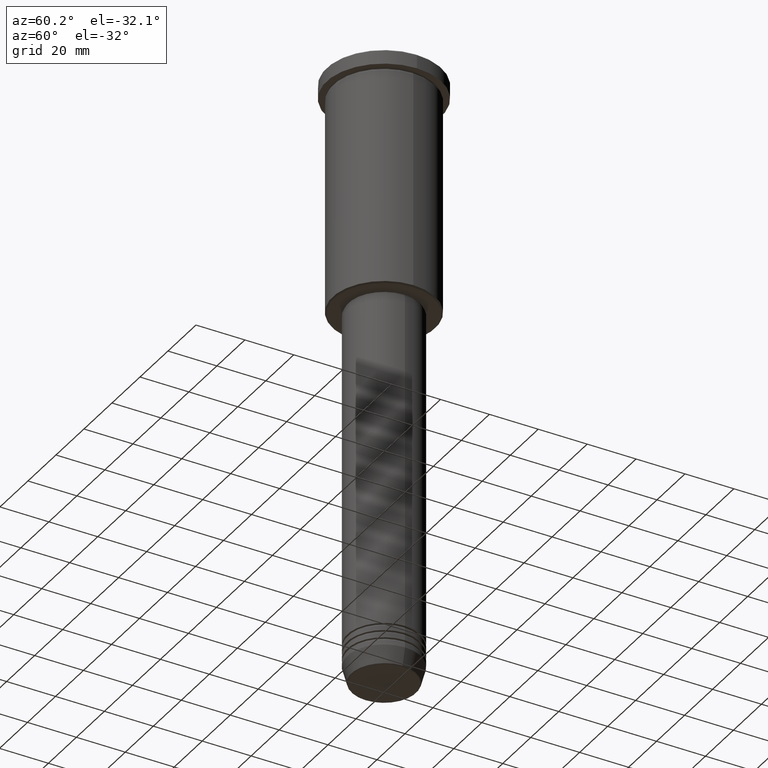
[diagram: clean part render]
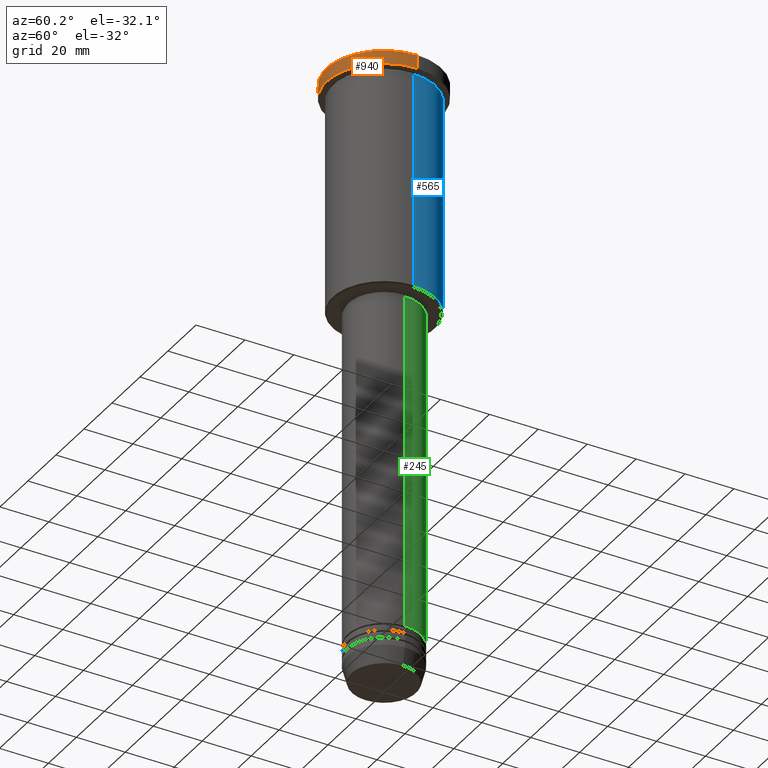
[diagram: same view with three faces highlighted in distinct colors, each labeled with its STEP entity id]
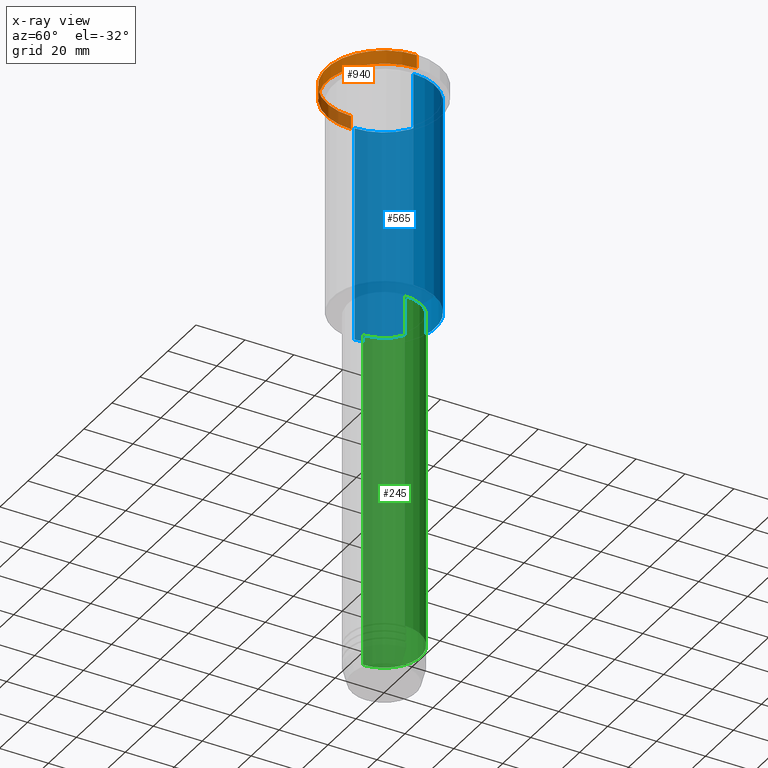
[diagram: x-ray of the same camera — body ghosted, the three highlighted faces saturated]
A machine part, auxiliary view with three faces highlighted in distinct colors.
The next image is the same camera in x-ray (body ghosted, the three faces saturated) — at least one of them is partly hidden behind the body in this view.
Their STEP definitions:

[orange] entity #940 — the highlighted cylindrical surface (partial cylindrical patch) has radius 23.5 mm, axis along (-0, -0, 1).
#31 = LINE ( 'NONE', #594, #345 ) ;
#75 = EDGE_CURVE ( 'NONE', #278, #704, #123, .T. ) ;
#112 = CARTESIAN_POINT ( 'NONE',  ( 0.000000000000000000, 0.000000000000000000, -5.999999999999994671 ) ) ;
#123 = LINE ( 'NONE', #206, #374 ) ;
#177 = CARTESIAN_POINT ( 'NONE',  ( 0.000000000000000000, 0.000000000000000000, -0.4999999999999726885 ) ) ;
#186 = EDGE_LOOP ( 'NONE', ( #829, #1072, #1143, #580 ) ) ;
#201 = DIRECTION ( 'NONE',  ( 0.000000000000000000, 0.000000000000000000, -1.000000000000000000 ) ) ;
#206 = CARTESIAN_POINT ( 'NONE',  ( 23.50000000000000000, 0.000000000000000000, 0.000000000000000000 ) ) ;
#278 = VERTEX_POINT ( 'NONE', #1179 ) ;
#311 = AXIS2_PLACEMENT_3D ( 'NONE', #177, #201, #917 ) ;
#345 = VECTOR ( 'NONE', #569, 1000.000000000000000 ) ;
#357 = FACE_OUTER_BOUND ( 'NONE', #186, .T. ) ;
#362 = VERTEX_POINT ( 'NONE', #749 ) ;
#374 = VECTOR ( 'NONE', #661, 1000.000000000000000 ) ;
#385 = DIRECTION ( 'NONE',  ( -0.000000000000000000, -0.000000000000000000, 1.000000000000000000 ) ) ;
#569 = DIRECTION ( 'NONE',  ( -0.000000000000000000, -0.000000000000000000, 1.000000000000000000 ) ) ;
#580 = ORIENTED_EDGE ( 'NONE', *, *, #797, .T. ) ;
#594 = CARTESIAN_POINT ( 'NONE',  ( -23.50000000000000000, 2.877919977996280320E-15, 0.000000000000000000 ) ) ;
#661 = DIRECTION ( 'NONE',  ( -0.000000000000000000, -0.000000000000000000, 1.000000000000000000 ) ) ;
#669 = AXIS2_PLACEMENT_3D ( 'NONE', #1061, #963, #1069 ) ;
#704 = VERTEX_POINT ( 'NONE', #816 ) ;
#707 = AXIS2_PLACEMENT_3D ( 'NONE', #112, #385, #1183 ) ;
#749 = CARTESIAN_POINT ( 'NONE',  ( -23.50000000000000000, 2.877919977996280320E-15, -0.4999999999999726885 ) ) ;
#797 = EDGE_CURVE ( 'NONE', #704, #362, #1018, .T. ) ;
#816 = CARTESIAN_POINT ( 'NONE',  ( 23.50000000000000000, 0.000000000000000000, -0.4999999999999726885 ) ) ;
#829 = ORIENTED_EDGE ( 'NONE', *, *, #896, .F. ) ;
#846 = CARTESIAN_POINT ( 'NONE',  ( -23.50000000000000000, 2.877919977996280320E-15, -5.999999999999994671 ) ) ;
#854 = CIRCLE ( 'NONE', #707, 23.50000000000000000 ) ;
#866 = EDGE_CURVE ( 'NONE', #897, #278, #854, .T. ) ;
#876 = CYLINDRICAL_SURFACE ( 'NONE', #669, 23.50000000000000000 ) ;
#896 = EDGE_CURVE ( 'NONE', #897, #362, #31, .T. ) ;
#897 = VERTEX_POINT ( 'NONE', #846 ) ;
#917 = DIRECTION ( 'NONE',  ( 1.000000000000000000, 0.000000000000000000, 0.000000000000000000 ) ) ;
#940 = ADVANCED_FACE ( 'NONE', ( #357 ), #876, .T. ) ;
#963 = DIRECTION ( 'NONE',  ( -0.000000000000000000, -0.000000000000000000, 1.000000000000000000 ) ) ;
#1018 = CIRCLE ( 'NONE', #311, 23.50000000000000000 ) ;
#1061 = CARTESIAN_POINT ( 'NONE',  ( 0.000000000000000000, 0.000000000000000000, 0.000000000000000000 ) ) ;
#1069 = DIRECTION ( 'NONE',  ( 1.000000000000000000, 0.000000000000000000, 0.000000000000000000 ) ) ;
#1072 = ORIENTED_EDGE ( 'NONE', *, *, #866, .T. ) ;
#1143 = ORIENTED_EDGE ( 'NONE', *, *, #75, .T. ) ;
#1179 = CARTESIAN_POINT ( 'NONE',  ( 23.50000000000000000, 0.000000000000000000, -5.999999999999994671 ) ) ;
#1183 = DIRECTION ( 'NONE',  ( 1.000000000000000000, 0.000000000000000000, 0.000000000000000000 ) ) ;

[blue] entity #565 — the highlighted cylindrical surface (partial cylindrical patch) has radius 21 mm, axis along (-0, -0, 1).
#33 = LINE ( 'NONE', #414, #771 ) ;
#84 = EDGE_CURVE ( 'NONE', #242, #273, #499, .T. ) ;
#100 = VERTEX_POINT ( 'NONE', #131 ) ;
#120 = DIRECTION ( 'NONE',  ( -1.000000000000000000, 0.000000000000000000, 0.000000000000000000 ) ) ;
#126 = DIRECTION ( 'NONE',  ( 1.000000000000000000, 0.000000000000000000, 0.000000000000000000 ) ) ;
#131 = CARTESIAN_POINT ( 'NONE',  ( -21.00000000000000000, 2.571758278209441661E-15, -95.49999999999997158 ) ) ;
#165 = AXIS2_PLACEMENT_3D ( 'NONE', #397, #675, #126 ) ;
#170 = CARTESIAN_POINT ( 'NONE',  ( -21.00000000000000000, 2.571758278209441661E-15, -6.999999999999994671 ) ) ;
#212 = LINE ( 'NONE', #942, #715 ) ;
#219 = DIRECTION ( 'NONE',  ( -0.000000000000000000, -0.000000000000000000, 1.000000000000000000 ) ) ;
#225 = ORIENTED_EDGE ( 'NONE', *, *, #84, .F. ) ;
#239 = EDGE_CURVE ( 'NONE', #100, #273, #33, .T. ) ;
#242 = VERTEX_POINT ( 'NONE', #775 ) ;
#272 = CARTESIAN_POINT ( 'NONE',  ( 21.00000000000000000, 0.000000000000000000, -95.49999999999997158 ) ) ;
#273 = VERTEX_POINT ( 'NONE', #170 ) ;
#279 = ORIENTED_EDGE ( 'NONE', *, *, #834, .T. ) ;
#300 = DIRECTION ( 'NONE',  ( -0.000000000000000000, -0.000000000000000000, 1.000000000000000000 ) ) ;
#314 = CARTESIAN_POINT ( 'NONE',  ( 0.000000000000000000, 0.000000000000000000, 0.000000000000000000 ) ) ;
#397 = CARTESIAN_POINT ( 'NONE',  ( 0.000000000000000000, 0.000000000000000000, -6.999999999999994671 ) ) ;
#414 = CARTESIAN_POINT ( 'NONE',  ( -21.00000000000000000, 2.571758278209441661E-15, 0.000000000000000000 ) ) ;
#421 = ORIENTED_EDGE ( 'NONE', *, *, #239, .T. ) ;
#498 = CYLINDRICAL_SURFACE ( 'NONE', #904, 21.00000000000000000 ) ;
#499 = CIRCLE ( 'NONE', #165, 21.00000000000000000 ) ;
#524 = ORIENTED_EDGE ( 'NONE', *, *, #526, .F. ) ;
#526 = EDGE_CURVE ( 'NONE', #1049, #242, #212, .T. ) ;
#529 = CIRCLE ( 'NONE', #686, 21.00000000000000000 ) ;
#559 = CARTESIAN_POINT ( 'NONE',  ( 0.000000000000000000, 0.000000000000000000, -95.49999999999997158 ) ) ;
#565 = ADVANCED_FACE ( 'NONE', ( #948 ), #498, .T. ) ;
#578 = DIRECTION ( 'NONE',  ( -0.000000000000000000, -0.000000000000000000, 1.000000000000000000 ) ) ;
#675 = DIRECTION ( 'NONE',  ( -0.000000000000000000, -0.000000000000000000, 1.000000000000000000 ) ) ;
#686 = AXIS2_PLACEMENT_3D ( 'NONE', #559, #300, #120 ) ;
#715 = VECTOR ( 'NONE', #578, 1000.000000000000000 ) ;
#771 = VECTOR ( 'NONE', #1135, 1000.000000000000000 ) ;
#775 = CARTESIAN_POINT ( 'NONE',  ( 21.00000000000000000, 0.000000000000000000, -6.999999999999994671 ) ) ;
#834 = EDGE_CURVE ( 'NONE', #1049, #100, #529, .T. ) ;
#904 = AXIS2_PLACEMENT_3D ( 'NONE', #314, #219, #1026 ) ;
#942 = CARTESIAN_POINT ( 'NONE',  ( 21.00000000000000000, 0.000000000000000000, 0.000000000000000000 ) ) ;
#947 = EDGE_LOOP ( 'NONE', ( #279, #421, #225, #524 ) ) ;
#948 = FACE_OUTER_BOUND ( 'NONE', #947, .T. ) ;
#1026 = DIRECTION ( 'NONE',  ( 1.000000000000000000, 0.000000000000000000, 0.000000000000000000 ) ) ;
#1049 = VERTEX_POINT ( 'NONE', #272 ) ;
#1135 = DIRECTION ( 'NONE',  ( -0.000000000000000000, -0.000000000000000000, 1.000000000000000000 ) ) ;

[green] entity #245 — the highlighted cylindrical surface (partial cylindrical patch) has radius 15 mm, axis along (-0, -0, 1).
#19 = CARTESIAN_POINT ( 'NONE',  ( 0.000000000000000000, 0.000000000000000000, -235.0000000000000000 ) ) ;
#71 = CARTESIAN_POINT ( 'NONE',  ( 0.000000000000000000, 0.000000000000000000, 0.000000000000000000 ) ) ;
#111 = LINE ( 'NONE', #478, #176 ) ;
#113 = DIRECTION ( 'NONE',  ( -0.000000000000000000, -0.000000000000000000, 1.000000000000000000 ) ) ;
#137 = AXIS2_PLACEMENT_3D ( 'NONE', #71, #891, #622 ) ;
#146 = DIRECTION ( 'NONE',  ( -0.000000000000000000, -0.000000000000000000, 1.000000000000000000 ) ) ;
#160 = DIRECTION ( 'NONE',  ( -0.000000000000000000, -0.000000000000000000, 1.000000000000000000 ) ) ;
#176 = VECTOR ( 'NONE', #146, 1000.000000000000000 ) ;
#240 = ORIENTED_EDGE ( 'NONE', *, *, #928, .F. ) ;
#245 = ADVANCED_FACE ( 'NONE', ( #971 ), #1160, .T. ) ;
#267 = EDGE_CURVE ( 'NONE', #722, #334, #899, .T. ) ;
#334 = VERTEX_POINT ( 'NONE', #469 ) ;
#382 = CIRCLE ( 'NONE', #710, 15.00000000000000000 ) ;
#417 = CARTESIAN_POINT ( 'NONE',  ( 0.000000000000000000, 0.000000000000000000, -97.00000000000000000 ) ) ;
#469 = CARTESIAN_POINT ( 'NONE',  ( -15.00000000000000000, 1.836970198721029589E-15, -97.00000000000000000 ) ) ;
#478 = CARTESIAN_POINT ( 'NONE',  ( 15.00000000000000000, 0.000000000000000000, 0.000000000000000000 ) ) ;
#501 = VERTEX_POINT ( 'NONE', #737 ) ;
#532 = CARTESIAN_POINT ( 'NONE',  ( -15.00000000000000000, 1.836970198721029589E-15, -235.0000000000000000 ) ) ;
#539 = EDGE_CURVE ( 'NONE', #501, #722, #691, .T. ) ;
#576 = ORIENTED_EDGE ( 'NONE', *, *, #1082, .F. ) ;
#602 = VERTEX_POINT ( 'NONE', #662 ) ;
#622 = DIRECTION ( 'NONE',  ( 1.000000000000000000, 0.000000000000000000, 0.000000000000000000 ) ) ;
#624 = ORIENTED_EDGE ( 'NONE', *, *, #539, .T. ) ;
#662 = CARTESIAN_POINT ( 'NONE',  ( 15.00000000000000000, 0.000000000000000000, -97.00000000000000000 ) ) ;
#691 = CIRCLE ( 'NONE', #881, 15.00000000000000000 ) ;
#710 = AXIS2_PLACEMENT_3D ( 'NONE', #417, #780, #1146 ) ;
#716 = VECTOR ( 'NONE', #160, 1000.000000000000000 ) ;
#722 = VERTEX_POINT ( 'NONE', #532 ) ;
#737 = CARTESIAN_POINT ( 'NONE',  ( 15.00000000000000000, 0.000000000000000000, -235.0000000000000000 ) ) ;
#757 = DIRECTION ( 'NONE',  ( 1.000000000000000000, 0.000000000000000000, 0.000000000000000000 ) ) ;
#780 = DIRECTION ( 'NONE',  ( -0.000000000000000000, -0.000000000000000000, 1.000000000000000000 ) ) ;
#881 = AXIS2_PLACEMENT_3D ( 'NONE', #19, #113, #757 ) ;
#891 = DIRECTION ( 'NONE',  ( -0.000000000000000000, -0.000000000000000000, 1.000000000000000000 ) ) ;
#899 = LINE ( 'NONE', #1174, #716 ) ;
#913 = EDGE_LOOP ( 'NONE', ( #624, #1126, #240, #576 ) ) ;
#928 = EDGE_CURVE ( 'NONE', #602, #334, #382, .T. ) ;
#971 = FACE_OUTER_BOUND ( 'NONE', #913, .T. ) ;
#1082 = EDGE_CURVE ( 'NONE', #501, #602, #111, .T. ) ;
#1126 = ORIENTED_EDGE ( 'NONE', *, *, #267, .T. ) ;
#1146 = DIRECTION ( 'NONE',  ( 1.000000000000000000, 0.000000000000000000, 0.000000000000000000 ) ) ;
#1160 = CYLINDRICAL_SURFACE ( 'NONE', #137, 15.00000000000000000 ) ;
#1174 = CARTESIAN_POINT ( 'NONE',  ( -15.00000000000000000, 1.836970198721029589E-15, 0.000000000000000000 ) ) ;